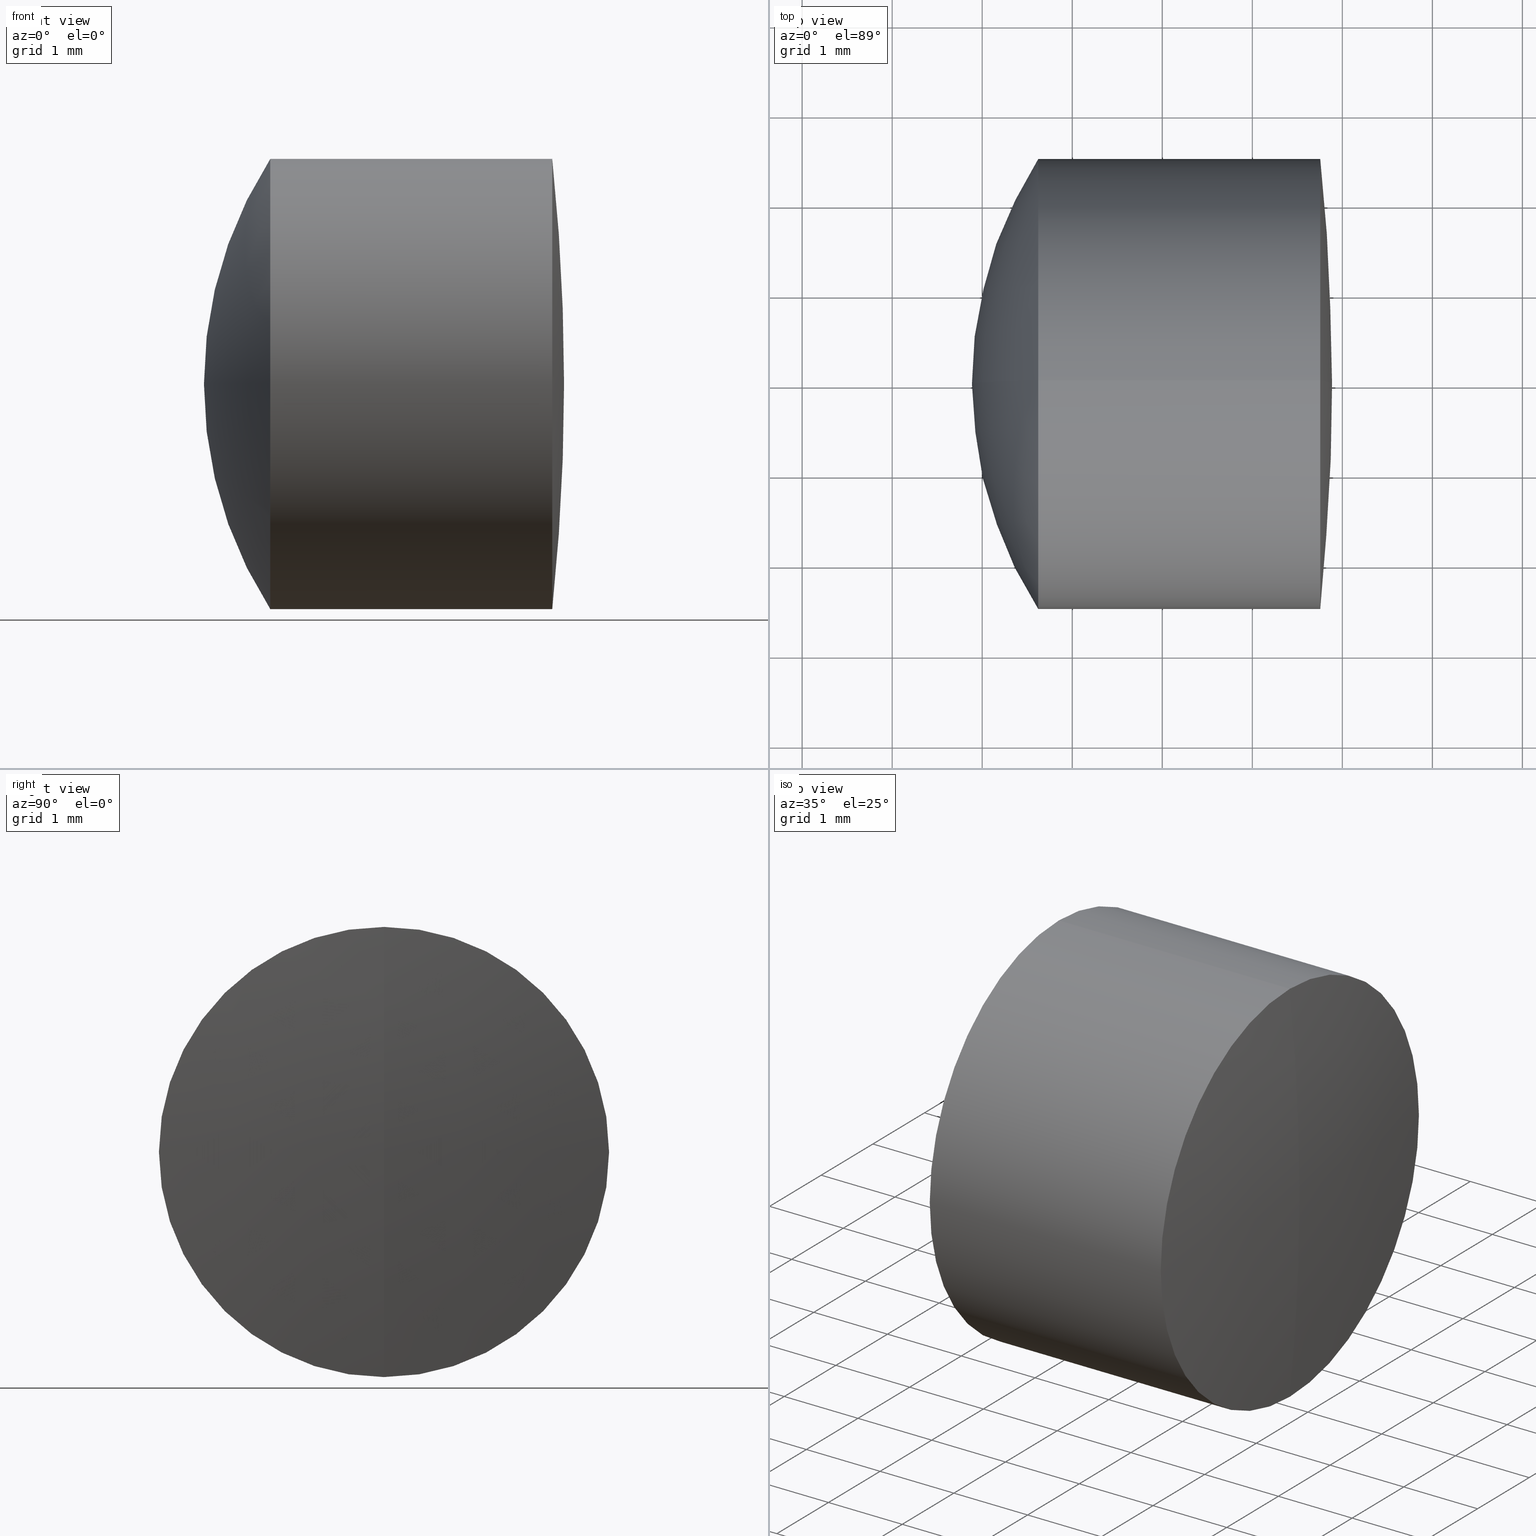
[diagram: canonical four-view strip — front | top / right | iso, engineering-drawing reading convention]
A machine part, canonical four-view strip (front | top / right | iso — engineering-drawing reading convention). The complete STEP part file that produces these views, byte-faithful:
ISO-10303-21;
HEADER;
FILE_DESCRIPTION (( 'STEP AP214' ),
    '1' );
FILE_NAME ('145144.STEP',
    '2019-06-05T07:40:13',
    ( 'user' ),
    ( '΢���й�' ),
    'SwSTEP 2.0',
    'SolidWorks 2016',
    '' );
FILE_SCHEMA (( 'AUTOMOTIVE_DESIGN' ));
ENDSEC;

DATA;
#1 = EDGE_LOOP ( 'NONE', ( #222, #309, #181, #326 ) ) ;
#2 = DIRECTION ( 'NONE',  ( 0.0000000000000000000, 0.0000000000000000000, 1.000000000000000000 ) ) ;
#3 = EDGE_CURVE ( 'NONE', #171, #232, #23, .T. ) ;
#4 = DIRECTION ( 'NONE',  ( 0.0000000000000000000, 0.0000000000000000000, -1.000000000000000000 ) ) ;
#5 = FACE_OUTER_BOUND ( 'NONE', #103, .T. ) ;
#6 = CARTESIAN_POINT ( 'NONE',  ( -1.513977515241453200, 0.0000000000000000000, 0.0000000000000000000 ) ) ;
#7 = DIRECTION ( 'NONE',  ( 0.0000000000000000000, 1.000000000000000000, -0.0000000000000000000 ) ) ;
#8 = EDGE_CURVE ( 'NONE', #176, #46, #163, .T. ) ;
#9 = ORIENTED_EDGE ( 'NONE', *, *, #227, .F. ) ;
#10 = CIRCLE ( 'NONE', #243, 2.499999999999997800 ) ;
#11 = CARTESIAN_POINT ( 'NONE',  ( 1.479348394177701900, 0.0000000000000000000, -2.499999999999998200 ) ) ;
#12 = SPHERICAL_SURFACE ( 'NONE', #249, 3.900000000000000800 ) ;
#13 = AXIS2_PLACEMENT_3D ( 'NONE', #150, #295, #61 ) ;
#14 = DIRECTION ( 'NONE',  ( 0.0000000000000000000, 0.0000000000000000000, 1.000000000000000000 ) ) ;
#15 = EDGE_CURVE ( 'NONE', #32, #287, #10, .T. ) ;
#16 = CARTESIAN_POINT ( 'NONE',  ( 3.886022484758548500, 0.0000000000000000000, -1.462228278181939500E-015 ) ) ;
#17 = CARTESIAN_POINT ( 'NONE',  ( 4.496022484758546200, 0.0000000000000000000, 3.707415142945429000E-030 ) ) ;
#18 = CARTESIAN_POINT ( 'NONE',  ( 3.754799295365029100, -3.061616997868377200E-016, 2.499999999999995100 ) ) ;
#19 = DIRECTION ( 'NONE',  ( 0.0000000000000000000, 0.0000000000000000000, 1.000000000000000000 ) ) ;
#20 = EDGE_CURVE ( 'NONE', #81, #52, #217, .T. ) ;
#21 = ORIENTED_EDGE ( 'NONE', *, *, #337, .F. ) ;
#22 = MECHANICAL_DESIGN_GEOMETRIC_PRESENTATION_REPRESENTATION (  '', ( #36 ), #264 ) ;
#23 = CIRCLE ( 'NONE', #296, 2.499999999999999600 ) ;
#24 = CARTESIAN_POINT ( 'NONE',  ( 1.479348394177702400, 0.0000000000000000000, 0.0000000000000000000 ) ) ;
#25 = DIRECTION ( 'NONE',  ( 0.0000000000000000000, 0.0000000000000000000, 1.000000000000000000 ) ) ;
#26 = ORIENTED_EDGE ( 'NONE', *, *, #15, .F. ) ;
#27 = CARTESIAN_POINT ( 'NONE',  ( -0.8160621761658039000, 3.061616997868382600E-016, -2.499999999999999600 ) ) ;
#28 = ORIENTED_EDGE ( 'NONE', *, *, #261, .T. ) ;
#29 = DIRECTION ( 'NONE',  ( 0.0000000000000000000, 0.0000000000000000000, 1.000000000000000000 ) ) ;
#30 = DIRECTION ( 'NONE',  ( -1.000000000000000000, -0.0000000000000000000, -0.0000000000000000000 ) ) ;
#31 = AXIS2_PLACEMENT_3D ( 'NONE', #247, #179, #216 ) ;
#32 = VERTEX_POINT ( 'NONE', #18 ) ;
#33 = CARTESIAN_POINT ( 'NONE',  ( 3.754799295365026900, 0.0000000000000000000, 0.0000000000000000000 ) ) ;
#34 = DIRECTION ( 'NONE',  ( 0.0000000000000000000, 0.0000000000000000000, -1.000000000000000000 ) ) ;
#35 = ADVANCED_FACE ( 'NONE', ( #286 ), #125, .T. ) ;
#36 = STYLED_ITEM ( 'NONE', ( #283 ), #153 ) ;
#37 = DIRECTION ( 'NONE',  ( 0.0000000000000000000, 0.0000000000000000000, 1.000000000000000000 ) ) ;
#38 = ORIENTED_EDGE ( 'NONE', *, *, #116, .T. ) ;
#39 = EDGE_LOOP ( 'NONE', ( #250, #200, #95, #54 ) ) ;
#40 = CARTESIAN_POINT ( 'NONE',  ( -19.99397751524145100, 0.0000000000000000000, 0.0000000000000000000 ) ) ;
#41 = DIRECTION ( 'NONE',  ( 0.0000000000000000000, 0.0000000000000000000, 1.000000000000000000 ) ) ;
#42 = ORIENTED_EDGE ( 'NONE', *, *, #123, .F. ) ;
#43 = SPHERICAL_SURFACE ( 'NONE', #159, 3.900000000000000800 ) ;
#44 = AXIS2_PLACEMENT_3D ( 'NONE', #40, #282, #114 ) ;
#45 = APPLICATION_PROTOCOL_DEFINITION ( 'draft international standard', 'automotive_design', 1998, #164 ) ;
#46 = VERTEX_POINT ( 'NONE', #212 ) ;
#47 =( NAMED_UNIT ( * ) SI_UNIT ( $, .STERADIAN. ) SOLID_ANGLE_UNIT ( ) );
#48 = SURFACE_STYLE_USAGE ( .BOTH. , #109 ) ;
#49 = PRESENTATION_LAYER_ASSIGNMENT (  '', '', ( #281 ) ) ;
#50 = ORIENTED_EDGE ( 'NONE', *, *, #345, .T. ) ;
#51 = FACE_OUTER_BOUND ( 'NONE', #65, .T. ) ;
#52 = VERTEX_POINT ( 'NONE', #168 ) ;
#53 = CIRCLE ( 'NONE', #135, 4.609999999999999400 ) ;
#54 = ORIENTED_EDGE ( 'NONE', *, *, #8, .F. ) ;
#55 = SURFACE_STYLE_USAGE ( .BOTH. , #330 ) ;
#56 = EDGE_CURVE ( 'NONE', #32, #46, #226, .T. ) ;
#57 = PRODUCT_CONTEXT ( 'NONE', #164, 'mechanical' ) ;
#58 =( GEOMETRIC_REPRESENTATION_CONTEXT ( 3 ) GLOBAL_UNCERTAINTY_ASSIGNED_CONTEXT ( ( #108 ) ) GLOBAL_UNIT_ASSIGNED_CONTEXT ( ( #311, #206, #254 ) ) REPRESENTATION_CONTEXT ( 'NONE', 'WORKASPACE' ) );
#59 = VERTEX_POINT ( 'NONE', #161 ) ;
#60 = DIRECTION ( 'NONE',  ( -0.0000000000000000000, -1.000000000000000000, -0.0000000000000000000 ) ) ;
#61 = DIRECTION ( 'NONE',  ( 0.0000000000000000000, 0.0000000000000000000, 1.000000000000000000 ) ) ;
#62 = EDGE_CURVE ( 'NONE', #287, #32, #333, .T. ) ;
#63 = CARTESIAN_POINT ( 'NONE',  ( 1.479348394177700100, 0.0000000000000000000, 2.500000000000000000 ) ) ;
#64 = VERTEX_POINT ( 'NONE', #63 ) ;
#65 = EDGE_LOOP ( 'NONE', ( #322, #92, #26 ) ) ;
#66 = AXIS2_PLACEMENT_3D ( 'NONE', #332, #177, #193 ) ;
#67 = CARTESIAN_POINT ( 'NONE',  ( -0.5519199926577972300, 0.0000000000000000000, 0.0000000000000000000 ) ) ;
#68 = DIRECTION ( 'NONE',  ( 0.0000000000000000000, -1.000000000000000000, 0.0000000000000000000 ) ) ;
#69 = ORIENTED_EDGE ( 'NONE', *, *, #345, .F. ) ;
#70 = CYLINDRICAL_SURFACE ( 'NONE', #71, 2.499999999999999600 ) ;
#71 = AXIS2_PLACEMENT_3D ( 'NONE', #302, #97, #334 ) ;
#72 = DIRECTION ( 'NONE',  ( 0.0000000000000000000, 0.0000000000000000000, -1.000000000000000000 ) ) ;
#73 = CIRCLE ( 'NONE', #102, 3.900000000000000800 ) ;
#74 = CARTESIAN_POINT ( 'NONE',  ( -1.513977515241453200, 0.0000000000000000000, 0.0000000000000000000 ) ) ;
#75 = PRESENTATION_LAYER_ASSIGNMENT (  '', '', ( #113 ) ) ;
#76 = EDGE_LOOP ( 'NONE', ( #9, #314, #77 ) ) ;
#77 = ORIENTED_EDGE ( 'NONE', *, *, #62, .F. ) ;
#78 = CARTESIAN_POINT ( 'NONE',  ( 3.754799295365029100, 0.0000000000000000000, -2.499999999999995100 ) ) ;
#79 = SPHERICAL_SURFACE ( 'NONE', #173, 4.609999999999999400 ) ;
#80 = CARTESIAN_POINT ( 'NONE',  ( 0.6227680392050399800, 0.0000000000000000000, 0.0000000000000000000 ) ) ;
#81 = VERTEX_POINT ( 'NONE', #293 ) ;
#82 = VECTOR ( 'NONE', #305, 1000.000000000000000 ) ;
#83 = SHAPE_DEFINITION_REPRESENTATION ( #105, #199 ) ;
#84 = CARTESIAN_POINT ( 'NONE',  ( -0.8160621761658039000, 0.0000000000000000000, 0.0000000000000000000 ) ) ;
#85 = CIRCLE ( 'NONE', #229, 3.900000000000000800 ) ;
#86 =( NAMED_UNIT ( * ) PLANE_ANGLE_UNIT ( ) SI_UNIT ( $, .RADIAN. ) );
#87 = SPHERICAL_SURFACE ( 'NONE', #31, 3.900000000000000800 ) ;
#88 =( NAMED_UNIT ( * ) PLANE_ANGLE_UNIT ( ) SI_UNIT ( $, .RADIAN. ) );
#89 = DIRECTION ( 'NONE',  ( 0.0000000000000000000, 0.0000000000000000000, 1.000000000000000000 ) ) ;
#90 = CARTESIAN_POINT ( 'NONE',  ( 0.6227680392050400900, 0.0000000000000000000, -2.499999999999999600 ) ) ;
#91 = CARTESIAN_POINT ( 'NONE',  ( 1.479348394177700100, 0.0000000000000000000, 0.0000000000000000000 ) ) ;
#92 = ORIENTED_EDGE ( 'NONE', *, *, #227, .T. ) ;
#93 = MANIFOLD_SOLID_BREP ( '��ת1', #299 ) ;
#94 = CARTESIAN_POINT ( 'NONE',  ( 4.496022484758546200, 0.0000000000000000000, 3.707415142945429000E-030 ) ) ;
#95 = ORIENTED_EDGE ( 'NONE', *, *, #56, .T. ) ;
#96 = MECHANICAL_DESIGN_GEOMETRIC_PRESENTATION_REPRESENTATION (  '', ( #113 ), #127 ) ;
#97 = DIRECTION ( 'NONE',  ( -1.000000000000000000, -0.0000000000000000000, -0.0000000000000000000 ) ) ;
#98 = ORIENTED_EDGE ( 'NONE', *, *, #132, .F. ) ;
#99 = SURFACE_STYLE_FILL_AREA ( #231 ) ;
#100 = EDGE_CURVE ( 'NONE', #122, #176, #85, .T. ) ;
#101 = DIRECTION ( 'NONE',  ( 0.0000000000000000000, 0.0000000000000000000, 1.000000000000000000 ) ) ;
#102 = AXIS2_PLACEMENT_3D ( 'NONE', #6, #68, #72 ) ;
#103 = EDGE_LOOP ( 'NONE', ( #245, #277, #133 ) ) ;
#104 = DIRECTION ( 'NONE',  ( -0.0000000000000000000, -1.000000000000000000, -0.0000000000000000000 ) ) ;
#105 = PRODUCT_DEFINITION_SHAPE ( 'NONE', 'NONE',  #346 ) ;
#106 = CLOSED_SHELL ( 'NONE', ( #268, #320, #144, #202, #162, #141 ) ) ;
#107 = FILL_AREA_STYLE_COLOUR ( '', #156 ) ;
#108 = UNCERTAINTY_MEASURE_WITH_UNIT (LENGTH_MEASURE( 1.000000000000000100E-005 ), #311, 'distance_accuracy_value', 'NONE');
#109 = SURFACE_SIDE_STYLE ('',( #182 ) ) ;
#110 = ORIENTED_EDGE ( 'NONE', *, *, #3, .F. ) ;
#111 = EDGE_LOOP ( 'NONE', ( #317, #276, #340 ) ) ;
#112 = CIRCLE ( 'NONE', #155, 23.87999999999999900 ) ;
#113 = STYLED_ITEM ( 'NONE', ( #213 ), #199 ) ;
#114 = DIRECTION ( 'NONE',  ( 0.0000000000000000000, 0.0000000000000000000, -1.000000000000000000 ) ) ;
#115 = ORIENTED_EDGE ( 'NONE', *, *, #337, .T. ) ;
#116 = EDGE_CURVE ( 'NONE', #232, #59, #53, .T. ) ;
#117 = CARTESIAN_POINT ( 'NONE',  ( 1.479348394177702400, 0.0000000000000000000, 0.0000000000000000000 ) ) ;
#118 = AXIS2_PLACEMENT_3D ( 'NONE', #91, #30, #14 ) ;
#119 = FACE_OUTER_BOUND ( 'NONE', #39, .T. ) ;
#120 =( LENGTH_UNIT ( ) NAMED_UNIT ( * ) SI_UNIT ( .MILLI., .METRE. ) );
#121 = CARTESIAN_POINT ( 'NONE',  ( 2.386022484758547200, 0.0000000000000000000, -2.388061258337339100E-016 ) ) ;
#122 = VERTEX_POINT ( 'NONE', #121 ) ;
#123 = EDGE_CURVE ( 'NONE', #232, #171, #259, .T. ) ;
#124 =( NAMED_UNIT ( * ) PLANE_ANGLE_UNIT ( ) SI_UNIT ( $, .RADIAN. ) );
#125 = SPHERICAL_SURFACE ( 'NONE', #191, 4.609999999999999400 ) ;
#126 = DIRECTION ( 'NONE',  ( -1.000000000000000000, -0.0000000000000000000, -0.0000000000000000000 ) ) ;
#127 =( GEOMETRIC_REPRESENTATION_CONTEXT ( 3 ) GLOBAL_UNCERTAINTY_ASSIGNED_CONTEXT ( ( #143 ) ) GLOBAL_UNIT_ASSIGNED_CONTEXT ( ( #120, #88, #47 ) ) REPRESENTATION_CONTEXT ( 'NONE', 'WORKASPACE' ) );
#128 = DIRECTION ( 'NONE',  ( 1.000000000000000000, 0.0000000000000000000, 0.0000000000000000000 ) ) ;
#129 = VECTOR ( 'NONE', #137, 1000.000000000000000 ) ;
#130 = DIRECTION ( 'NONE',  ( 0.0000000000000000000, 1.000000000000000000, 0.0000000000000000000 ) ) ;
#131 = DIRECTION ( 'NONE',  ( 0.0000000000000000000, -1.000000000000000000, -1.224646799147353200E-016 ) ) ;
#132 = EDGE_CURVE ( 'NONE', #122, #46, #291, .T. ) ;
#133 = ORIENTED_EDGE ( 'NONE', *, *, #208, .T. ) ;
#134 = SURFACE_STYLE_FILL_AREA ( #347 ) ;
#135 = AXIS2_PLACEMENT_3D ( 'NONE', #17, #186, #221 ) ;
#136 = DIRECTION ( 'NONE',  ( 0.0000000000000000000, 0.0000000000000000000, 1.000000000000000000 ) ) ;
#137 = DIRECTION ( 'NONE',  ( -1.000000000000000000, -0.0000000000000000000, -0.0000000000000000000 ) ) ;
#138 = DIRECTION ( 'NONE',  ( 0.0000000000000000000, 0.0000000000000000000, 1.000000000000000000 ) ) ;
#139 = SPHERICAL_SURFACE ( 'NONE', #234, 3.900000000000000800 ) ;
#140 = CARTESIAN_POINT ( 'NONE',  ( 0.6227680392050400900, -3.061616997868382600E-016, 2.499999999999999600 ) ) ;
#141 = ADVANCED_FACE ( 'NONE', ( #119 ), #252, .T. ) ;
#142 = CYLINDRICAL_SURFACE ( 'NONE', #13, 2.499999999999997800 ) ;
#143 = UNCERTAINTY_MEASURE_WITH_UNIT (LENGTH_MEASURE( 1.000000000000000100E-005 ), #120, 'distance_accuracy_value', 'NONE');
#144 = ADVANCED_FACE ( 'NONE', ( #5 ), #139, .F. ) ;
#145 = ORIENTED_EDGE ( 'NONE', *, *, #195, .T. ) ;
#146 = DIRECTION ( 'NONE',  ( -1.000000000000000000, -0.0000000000000000000, -0.0000000000000000000 ) ) ;
#147 = CIRCLE ( 'NONE', #325, 4.609999999999999400 ) ;
#148 = CARTESIAN_POINT ( 'NONE',  ( -0.8160621761658039000, 0.0000000000000000000, 2.499999999999999600 ) ) ;
#149 = UNCERTAINTY_MEASURE_WITH_UNIT (LENGTH_MEASURE( 1.000000000000000100E-005 ), #331, 'distance_accuracy_value', 'NONE');
#150 = CARTESIAN_POINT ( 'NONE',  ( -0.5519199926577972300, 0.0000000000000000000, 0.0000000000000000000 ) ) ;
#151 = CARTESIAN_POINT ( 'NONE',  ( -1.513977515241453200, 0.0000000000000000000, 0.0000000000000000000 ) ) ;
#152 = EDGE_LOOP ( 'NONE', ( #21, #50, #28, #110 ) ) ;
#153 = MANIFOLD_SOLID_BREP ( '��ת2', #106 ) ;
#154 = ORIENTED_EDGE ( 'NONE', *, *, #20, .T. ) ;
#155 = AXIS2_PLACEMENT_3D ( 'NONE', #218, #7, #301 ) ;
#156 = COLOUR_RGB ( '',1.000000000000000000, 1.000000000000000000, 1.000000000000000000 ) ;
#157 = CARTESIAN_POINT ( 'NONE',  ( 4.496022484758546200, 0.0000000000000000000, 3.707415142945429000E-030 ) ) ;
#158 = EDGE_CURVE ( 'NONE', #335, #32, #192, .T. ) ;
#159 = AXIS2_PLACEMENT_3D ( 'NONE', #151, #265, #29 ) ;
#160 = PRESENTATION_STYLE_ASSIGNMENT (( #289 ) ) ;
#161 = CARTESIAN_POINT ( 'NONE',  ( -0.1139775152414531500, 0.0000000000000000000, -2.822810872034612000E-016 ) ) ;
#162 = ADVANCED_FACE ( 'NONE', ( #51 ), #166, .T. ) ;
#163 = CIRCLE ( 'NONE', #318, 2.499999999999998200 ) ;
#164 = APPLICATION_CONTEXT ( 'automotive_design' ) ;
#165 = EDGE_LOOP ( 'NONE', ( #248, #154, #190 ) ) ;
#166 = SPHERICAL_SURFACE ( 'NONE', #66, 23.87999999999999900 ) ;
#167 = FACE_OUTER_BOUND ( 'NONE', #185, .T. ) ;
#168 = CARTESIAN_POINT ( 'NONE',  ( 1.479348394177700100, 3.061616997868383100E-016, -2.500000000000000000 ) ) ;
#169 = CARTESIAN_POINT ( 'NONE',  ( 3.754799295365026900, 0.0000000000000000000, 0.0000000000000000000 ) ) ;
#170 = FILL_AREA_STYLE_COLOUR ( '', #237 ) ;
#171 = VERTEX_POINT ( 'NONE', #90 ) ;
#172 = CARTESIAN_POINT ( 'NONE',  ( -1.513977515241453200, 0.0000000000000000000, 0.0000000000000000000 ) ) ;
#173 = AXIS2_PLACEMENT_3D ( 'NONE', #329, #104, #34 ) ;
#174 = PRESENTATION_LAYER_ASSIGNMENT (  '', '', ( #36 ) ) ;
#175 = ORIENTED_EDGE ( 'NONE', *, *, #20, .F. ) ;
#176 = VERTEX_POINT ( 'NONE', #11 ) ;
#177 = DIRECTION ( 'NONE',  ( -0.0000000000000000000, -1.000000000000000000, -0.0000000000000000000 ) ) ;
#178 = FACE_OUTER_BOUND ( 'NONE', #165, .T. ) ;
#179 = DIRECTION ( 'NONE',  ( -0.0000000000000000000, -1.000000000000000000, -0.0000000000000000000 ) ) ;
#180 = DIRECTION ( 'NONE',  ( -1.000000000000000000, -0.0000000000000000000, -0.0000000000000000000 ) ) ;
#181 = ORIENTED_EDGE ( 'NONE', *, *, #208, .F. ) ;
#182 = SURFACE_STYLE_FILL_AREA ( #241 ) ;
#183 = AXIS2_PLACEMENT_3D ( 'NONE', #67, #194, #2 ) ;
#184 =( NAMED_UNIT ( * ) SI_UNIT ( $, .STERADIAN. ) SOLID_ANGLE_UNIT ( ) );
#185 = EDGE_LOOP ( 'NONE', ( #175, #145, #69 ) ) ;
#186 = DIRECTION ( 'NONE',  ( 0.0000000000000000000, -1.000000000000000000, -1.224646799147353200E-016 ) ) ;
#187 = VECTOR ( 'NONE', #180, 1000.000000000000000 ) ;
#188 = ADVANCED_FACE ( 'NONE', ( #342 ), #70, .T. ) ;
#189 = DIRECTION ( 'NONE',  ( 0.0000000000000000000, -1.000000000000000000, -1.224646799147353200E-016 ) ) ;
#190 = ORIENTED_EDGE ( 'NONE', *, *, #214, .F. ) ;
#191 = AXIS2_PLACEMENT_3D ( 'NONE', #157, #271, #4 ) ;
#192 = CIRCLE ( 'NONE', #244, 23.87999999999999900 ) ;
#193 = DIRECTION ( 'NONE',  ( 0.0000000000000000000, 0.0000000000000000000, -1.000000000000000000 ) ) ;
#194 = DIRECTION ( 'NONE',  ( -1.000000000000000000, -0.0000000000000000000, -0.0000000000000000000 ) ) ;
#195 = EDGE_CURVE ( 'NONE', #81, #64, #73, .T. ) ;
#196 =( NAMED_UNIT ( * ) SI_UNIT ( $, .STERADIAN. ) SOLID_ANGLE_UNIT ( ) );
#197 = DIRECTION ( 'NONE',  ( -1.000000000000000000, -0.0000000000000000000, -0.0000000000000000000 ) ) ;
#198 = AXIS2_PLACEMENT_3D ( 'NONE', #117, #321, #41 ) ;
#199 = ADVANCED_BREP_SHAPE_REPRESENTATION ( '145144', ( #93, #153, #215 ), #58 ) ;
#200 = ORIENTED_EDGE ( 'NONE', *, *, #62, .T. ) ;
#201 = CARTESIAN_POINT ( 'NONE',  ( -1.513977515241453200, 0.0000000000000000000, 0.0000000000000000000 ) ) ;
#202 = ADVANCED_FACE ( 'NONE', ( #336 ), #87, .F. ) ;
#203 = EDGE_CURVE ( 'NONE', #287, #176, #239, .T. ) ;
#204 = PRODUCT_RELATED_PRODUCT_CATEGORY ( 'part', '', ( #257 ) ) ;
#205 = EDGE_LOOP ( 'NONE', ( #258, #38, #269 ) ) ;
#206 =( NAMED_UNIT ( * ) PLANE_ANGLE_UNIT ( ) SI_UNIT ( $, .RADIAN. ) );
#207 = ADVANCED_FACE ( 'NONE', ( #278 ), #312, .T. ) ;
#208 = EDGE_CURVE ( 'NONE', #46, #176, #262, .T. ) ;
#209 = EDGE_LOOP ( 'NONE', ( #98, #210, #313 ) ) ;
#210 = ORIENTED_EDGE ( 'NONE', *, *, #100, .T. ) ;
#211 = COLOUR_RGB ( '',1.000000000000000000, 1.000000000000000000, 1.000000000000000000 ) ;
#212 = CARTESIAN_POINT ( 'NONE',  ( 1.479348394177701900, -3.061616997868381200E-016, 2.499999999999998200 ) ) ;
#213 = PRESENTATION_STYLE_ASSIGNMENT (( #55 ) ) ;
#214 = EDGE_CURVE ( 'NONE', #64, #52, #300, .T. ) ;
#215 = AXIS2_PLACEMENT_3D ( 'NONE', #263, #101, #128 ) ;
#216 = DIRECTION ( 'NONE',  ( 0.0000000000000000000, 0.0000000000000000000, -1.000000000000000000 ) ) ;
#217 = CIRCLE ( 'NONE', #251, 3.900000000000000800 ) ;
#218 = CARTESIAN_POINT ( 'NONE',  ( -19.99397751524145100, 0.0000000000000000000, 0.0000000000000000000 ) ) ;
#219 = AXIS2_PLACEMENT_3D ( 'NONE', #307, #189, #327 ) ;
#220 = DIRECTION ( 'NONE',  ( -1.000000000000000000, -0.0000000000000000000, -0.0000000000000000000 ) ) ;
#221 = DIRECTION ( 'NONE',  ( 0.0000000000000000000, 1.224646799147353200E-016, -1.000000000000000000 ) ) ;
#222 = ORIENTED_EDGE ( 'NONE', *, *, #15, .T. ) ;
#223 = DIRECTION ( 'NONE',  ( -1.000000000000000000, -0.0000000000000000000, -0.0000000000000000000 ) ) ;
#224 = FACE_OUTER_BOUND ( 'NONE', #111, .T. ) ;
#225 = DIRECTION ( 'NONE',  ( -1.000000000000000000, -0.0000000000000000000, -0.0000000000000000000 ) ) ;
#226 = LINE ( 'NONE', #279, #230 ) ;
#227 = EDGE_CURVE ( 'NONE', #335, #287, #112, .T. ) ;
#228 = CIRCLE ( 'NONE', #118, 2.500000000000000000 ) ;
#229 = AXIS2_PLACEMENT_3D ( 'NONE', #172, #242, #292 ) ;
#230 = VECTOR ( 'NONE', #197, 1000.000000000000000 ) ;
#231 = FILL_AREA_STYLE ('',( #170 ) ) ;
#232 = VERTEX_POINT ( 'NONE', #140 ) ;
#233 = SPHERICAL_SURFACE ( 'NONE', #44, 23.87999999999999900 ) ;
#234 = AXIS2_PLACEMENT_3D ( 'NONE', #201, #60, #238 ) ;
#235 = DIRECTION ( 'NONE',  ( 0.0000000000000000000, 0.0000000000000000000, 1.000000000000000000 ) ) ;
#236 = CARTESIAN_POINT ( 'NONE',  ( 0.6227680392050399800, 0.0000000000000000000, 0.0000000000000000000 ) ) ;
#237 = COLOUR_RGB ( '',1.000000000000000000, 1.000000000000000000, 1.000000000000000000 ) ;
#238 = DIRECTION ( 'NONE',  ( 0.0000000000000000000, 0.0000000000000000000, -1.000000000000000000 ) ) ;
#239 = LINE ( 'NONE', #290, #129 ) ;
#240 = ADVANCED_FACE ( 'NONE', ( #224 ), #79, .T. ) ;
#241 = FILL_AREA_STYLE ('',( #107 ) ) ;
#242 = DIRECTION ( 'NONE',  ( 0.0000000000000000000, 1.000000000000000000, -0.0000000000000000000 ) ) ;
#243 = AXIS2_PLACEMENT_3D ( 'NONE', #33, #275, #89 ) ;
#244 = AXIS2_PLACEMENT_3D ( 'NONE', #308, #131, #303 ) ;
#245 = ORIENTED_EDGE ( 'NONE', *, *, #100, .F. ) ;
#246 = PRODUCT_DEFINITION_CONTEXT ( 'detailed design', #285, 'design' ) ;
#247 = CARTESIAN_POINT ( 'NONE',  ( -1.513977515241453200, 0.0000000000000000000, 0.0000000000000000000 ) ) ;
#248 = ORIENTED_EDGE ( 'NONE', *, *, #195, .F. ) ;
#249 = AXIS2_PLACEMENT_3D ( 'NONE', #74, #130, #25 ) ;
#250 = ORIENTED_EDGE ( 'NONE', *, *, #203, .F. ) ;
#251 = AXIS2_PLACEMENT_3D ( 'NONE', #253, #284, #270 ) ;
#252 = CYLINDRICAL_SURFACE ( 'NONE', #183, 2.499999999999997800 ) ;
#253 = CARTESIAN_POINT ( 'NONE',  ( -1.513977515241453200, 0.0000000000000000000, 0.0000000000000000000 ) ) ;
#254 =( NAMED_UNIT ( * ) SI_UNIT ( $, .STERADIAN. ) SOLID_ANGLE_UNIT ( ) );
#255 = FACE_OUTER_BOUND ( 'NONE', #76, .T. ) ;
#256 = DIRECTION ( 'NONE',  ( -1.000000000000000000, -0.0000000000000000000, -0.0000000000000000000 ) ) ;
#257 = PRODUCT ( '145144', '145144', '', ( #57 ) ) ;
#258 = ORIENTED_EDGE ( 'NONE', *, *, #3, .T. ) ;
#259 = CIRCLE ( 'NONE', #288, 2.499999999999999600 ) ;
#260 = LINE ( 'NONE', #27, #187 ) ;
#261 = EDGE_CURVE ( 'NONE', #64, #232, #274, .T. ) ;
#262 = CIRCLE ( 'NONE', #198, 2.499999999999998200 ) ;
#263 = CARTESIAN_POINT ( 'NONE',  ( 0.0000000000000000000, 0.0000000000000000000, 0.0000000000000000000 ) ) ;
#264 =( GEOMETRIC_REPRESENTATION_CONTEXT ( 3 ) GLOBAL_UNCERTAINTY_ASSIGNED_CONTEXT ( ( #149 ) ) GLOBAL_UNIT_ASSIGNED_CONTEXT ( ( #331, #86, #196 ) ) REPRESENTATION_CONTEXT ( 'NONE', 'WORKASPACE' ) );
#265 = DIRECTION ( 'NONE',  ( 0.0000000000000000000, 1.000000000000000000, 0.0000000000000000000 ) ) ;
#266 = CARTESIAN_POINT ( 'NONE',  ( 1.479348394177700100, 0.0000000000000000000, 0.0000000000000000000 ) ) ;
#267 = AXIS2_PLACEMENT_3D ( 'NONE', #266, #256, #19 ) ;
#268 = ADVANCED_FACE ( 'NONE', ( #323 ), #142, .T. ) ;
#269 = ORIENTED_EDGE ( 'NONE', *, *, #280, .F. ) ;
#270 = DIRECTION ( 'NONE',  ( 0.0000000000000000000, -1.224646799147353200E-016, 1.000000000000000000 ) ) ;
#271 = DIRECTION ( 'NONE',  ( -0.0000000000000000000, -1.000000000000000000, -0.0000000000000000000 ) ) ;
#272 = PRODUCT_DEFINITION_FORMATION_WITH_SPECIFIED_SOURCE ( '�κ�', '', #257, .NOT_KNOWN. ) ;
#273 = DIRECTION ( 'NONE',  ( 0.0000000000000000000, 0.0000000000000000000, 1.000000000000000000 ) ) ;
#274 = LINE ( 'NONE', #148, #82 ) ;
#275 = DIRECTION ( 'NONE',  ( -1.000000000000000000, -0.0000000000000000000, -0.0000000000000000000 ) ) ;
#276 = ORIENTED_EDGE ( 'NONE', *, *, #123, .T. ) ;
#277 = ORIENTED_EDGE ( 'NONE', *, *, #132, .T. ) ;
#278 = FACE_OUTER_BOUND ( 'NONE', #310, .T. ) ;
#279 = CARTESIAN_POINT ( 'NONE',  ( -0.5519199926577972300, 0.0000000000000000000, 2.499999999999997800 ) ) ;
#280 = EDGE_CURVE ( 'NONE', #171, #59, #147, .T. ) ;
#281 = STYLED_ITEM ( 'NONE', ( #160 ), #93 ) ;
#282 = DIRECTION ( 'NONE',  ( -0.0000000000000000000, -1.000000000000000000, -0.0000000000000000000 ) ) ;
#283 = PRESENTATION_STYLE_ASSIGNMENT (( #48 ) ) ;
#284 = DIRECTION ( 'NONE',  ( -0.0000000000000000000, 1.000000000000000000, 1.224646799147353200E-016 ) ) ;
#285 = APPLICATION_CONTEXT ( 'automotive_design' ) ;
#286 = FACE_OUTER_BOUND ( 'NONE', #205, .T. ) ;
#287 = VERTEX_POINT ( 'NONE', #78 ) ;
#288 = AXIS2_PLACEMENT_3D ( 'NONE', #236, #220, #235 ) ;
#289 = SURFACE_STYLE_USAGE ( .BOTH. , #304 ) ;
#290 = CARTESIAN_POINT ( 'NONE',  ( -0.5519199926577972300, 3.061616997868380700E-016, -2.499999999999997800 ) ) ;
#291 = CIRCLE ( 'NONE', #219, 3.900000000000000800 ) ;
#292 = DIRECTION ( 'NONE',  ( 0.0000000000000000000, 0.0000000000000000000, 1.000000000000000000 ) ) ;
#293 = CARTESIAN_POINT ( 'NONE',  ( 2.386022484758547200, 0.0000000000000000000, 2.388061258337339100E-016 ) ) ;
#294 = ORIENTED_EDGE ( 'NONE', *, *, #261, .F. ) ;
#295 = DIRECTION ( 'NONE',  ( -1.000000000000000000, -0.0000000000000000000, -0.0000000000000000000 ) ) ;
#296 = AXIS2_PLACEMENT_3D ( 'NONE', #80, #146, #37 ) ;
#297 = DIRECTION ( 'NONE',  ( 0.0000000000000000000, 1.000000000000000000, -0.0000000000000000000 ) ) ;
#298 =( GEOMETRIC_REPRESENTATION_CONTEXT ( 3 ) GLOBAL_UNCERTAINTY_ASSIGNED_CONTEXT ( ( #324 ) ) GLOBAL_UNIT_ASSIGNED_CONTEXT ( ( #339, #124, #184 ) ) REPRESENTATION_CONTEXT ( 'NONE', 'WORKASPACE' ) );
#299 = CLOSED_SHELL ( 'NONE', ( #328, #207, #35, #240, #188, #315 ) ) ;
#300 = CIRCLE ( 'NONE', #267, 2.500000000000000000 ) ;
#301 = DIRECTION ( 'NONE',  ( 0.0000000000000000000, 0.0000000000000000000, 1.000000000000000000 ) ) ;
#302 = CARTESIAN_POINT ( 'NONE',  ( -0.8160621761658039000, 0.0000000000000000000, 0.0000000000000000000 ) ) ;
#303 = DIRECTION ( 'NONE',  ( 0.0000000000000000000, 1.224646799147353000E-016, -1.000000000000000000 ) ) ;
#304 = SURFACE_SIDE_STYLE ('',( #99 ) ) ;
#305 = DIRECTION ( 'NONE',  ( -1.000000000000000000, -0.0000000000000000000, -0.0000000000000000000 ) ) ;
#306 = MECHANICAL_DESIGN_GEOMETRIC_PRESENTATION_REPRESENTATION (  '', ( #281 ), #298 ) ;
#307 = CARTESIAN_POINT ( 'NONE',  ( -1.513977515241453200, 0.0000000000000000000, 0.0000000000000000000 ) ) ;
#308 = CARTESIAN_POINT ( 'NONE',  ( -19.99397751524145100, 0.0000000000000000000, 0.0000000000000000000 ) ) ;
#309 = ORIENTED_EDGE ( 'NONE', *, *, #203, .T. ) ;
#310 = EDGE_LOOP ( 'NONE', ( #344, #115, #42, #294 ) ) ;
#311 =( LENGTH_UNIT ( ) NAMED_UNIT ( * ) SI_UNIT ( .MILLI., .METRE. ) );
#312 = CYLINDRICAL_SURFACE ( 'NONE', #341, 2.499999999999999600 ) ;
#313 = ORIENTED_EDGE ( 'NONE', *, *, #8, .T. ) ;
#314 = ORIENTED_EDGE ( 'NONE', *, *, #158, .T. ) ;
#315 = ADVANCED_FACE ( 'NONE', ( #167 ), #12, .T. ) ;
#316 = APPLICATION_PROTOCOL_DEFINITION ( 'draft international standard', 'automotive_design', 1998, #285 ) ;
#317 = ORIENTED_EDGE ( 'NONE', *, *, #116, .F. ) ;
#318 = AXIS2_PLACEMENT_3D ( 'NONE', #24, #126, #273 ) ;
#319 = AXIS2_PLACEMENT_3D ( 'NONE', #169, #225, #138 ) ;
#320 = ADVANCED_FACE ( 'NONE', ( #255 ), #233, .T. ) ;
#321 = DIRECTION ( 'NONE',  ( -1.000000000000000000, -0.0000000000000000000, -0.0000000000000000000 ) ) ;
#322 = ORIENTED_EDGE ( 'NONE', *, *, #158, .F. ) ;
#323 = FACE_OUTER_BOUND ( 'NONE', #1, .T. ) ;
#324 = UNCERTAINTY_MEASURE_WITH_UNIT (LENGTH_MEASURE( 1.000000000000000100E-005 ), #339, 'distance_accuracy_value', 'NONE');
#325 = AXIS2_PLACEMENT_3D ( 'NONE', #94, #297, #343 ) ;
#326 = ORIENTED_EDGE ( 'NONE', *, *, #56, .F. ) ;
#327 = DIRECTION ( 'NONE',  ( 0.0000000000000000000, 1.224646799147353200E-016, -1.000000000000000000 ) ) ;
#328 = ADVANCED_FACE ( 'NONE', ( #178 ), #43, .T. ) ;
#329 = CARTESIAN_POINT ( 'NONE',  ( 4.496022484758546200, 0.0000000000000000000, 3.707415142945429000E-030 ) ) ;
#330 = SURFACE_SIDE_STYLE ('',( #134 ) ) ;
#331 =( LENGTH_UNIT ( ) NAMED_UNIT ( * ) SI_UNIT ( .MILLI., .METRE. ) );
#332 = CARTESIAN_POINT ( 'NONE',  ( -19.99397751524145100, 0.0000000000000000000, 0.0000000000000000000 ) ) ;
#333 = CIRCLE ( 'NONE', #319, 2.499999999999997800 ) ;
#334 = DIRECTION ( 'NONE',  ( 0.0000000000000000000, 0.0000000000000000000, 1.000000000000000000 ) ) ;
#335 = VERTEX_POINT ( 'NONE', #16 ) ;
#336 = FACE_OUTER_BOUND ( 'NONE', #209, .T. ) ;
#337 = EDGE_CURVE ( 'NONE', #52, #171, #260, .T. ) ;
#338 = FILL_AREA_STYLE_COLOUR ( '', #211 ) ;
#339 =( LENGTH_UNIT ( ) NAMED_UNIT ( * ) SI_UNIT ( .MILLI., .METRE. ) );
#340 = ORIENTED_EDGE ( 'NONE', *, *, #280, .T. ) ;
#341 = AXIS2_PLACEMENT_3D ( 'NONE', #84, #223, #136 ) ;
#342 = FACE_OUTER_BOUND ( 'NONE', #152, .T. ) ;
#343 = DIRECTION ( 'NONE',  ( 0.0000000000000000000, 0.0000000000000000000, 1.000000000000000000 ) ) ;
#344 = ORIENTED_EDGE ( 'NONE', *, *, #214, .T. ) ;
#345 = EDGE_CURVE ( 'NONE', #52, #64, #228, .T. ) ;
#346 = PRODUCT_DEFINITION ( 'δ֪', '', #272, #246 ) ;
#347 = FILL_AREA_STYLE ('',( #338 ) ) ;
ENDSEC;
END-ISO-10303-21;
